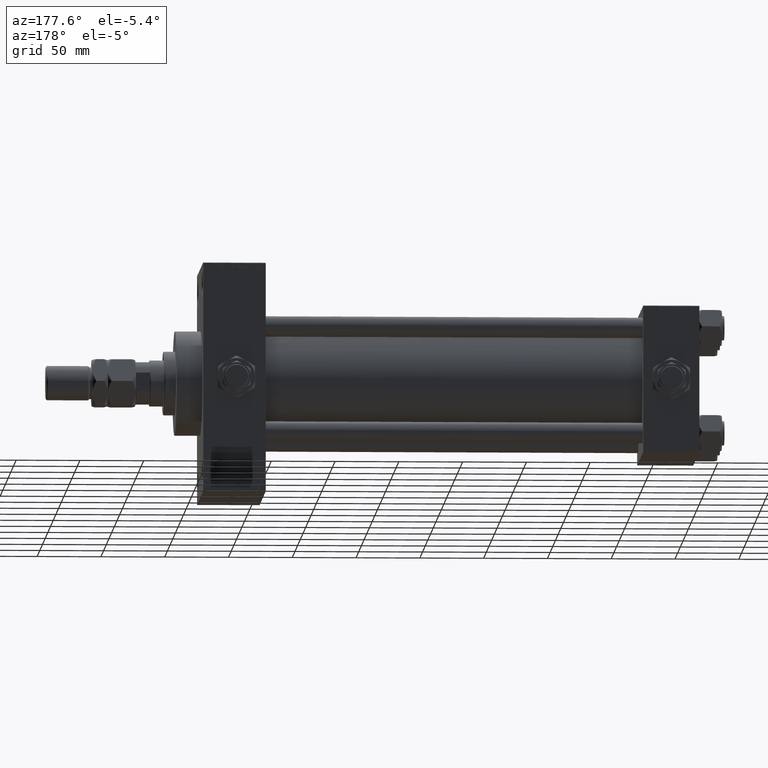
[diagram: clean part render]
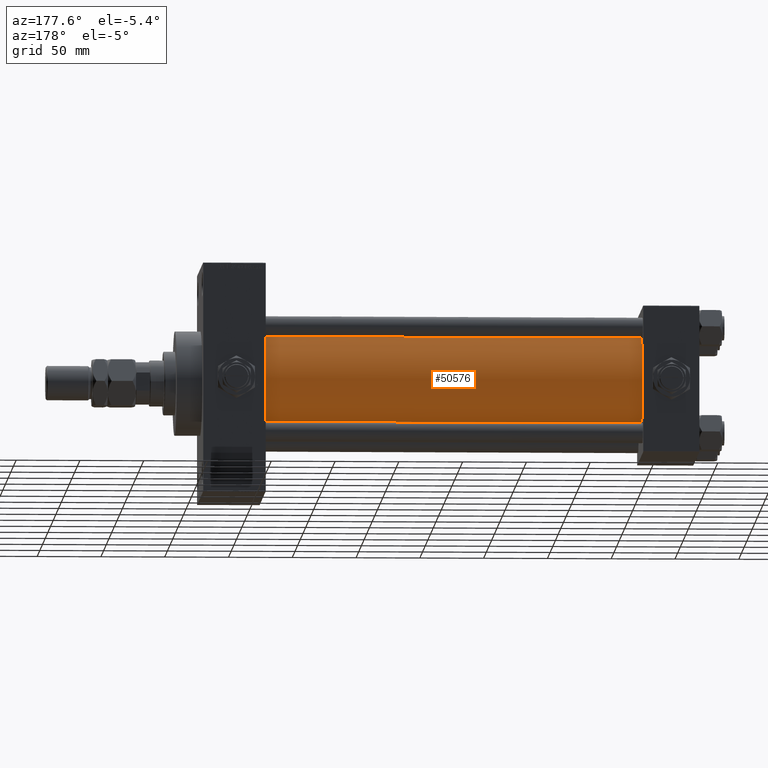
[diagram: same view with one face highlighted and labeled with its STEP entity id]
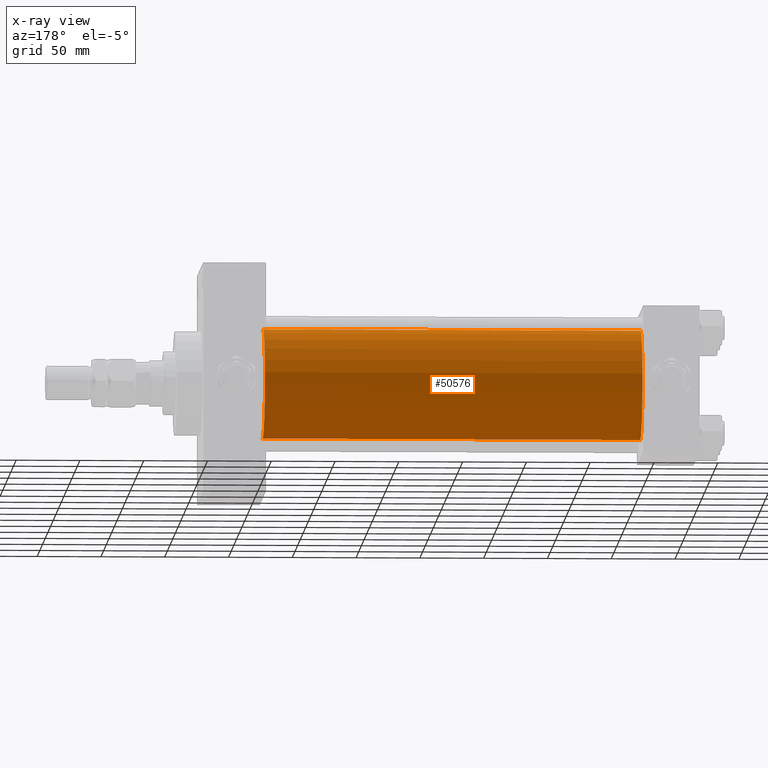
[diagram: x-ray of the same camera — body ghosted, the highlighted face saturated]
A machine part, auxiliary view. The second image highlights one B-rep face of the part: STEP entity #50576.
The next image is the same camera in x-ray: the body ghosted, the highlighted face saturated — about 0% of this face is hidden behind the body in this view.
In plain terms, the highlighted cylindrical surface (partial cylindrical patch) has radius 43 mm, axis along (-1, -0, -0).
Its self-contained STEP definition (entity closure, byte-faithful):
#4288 = CIRCLE ( 'NONE', #40816, 43.00000000000000000 ) ;
#4566 = VERTEX_POINT ( 'NONE', #17306 ) ;
#5474 = CARTESIAN_POINT ( 'NONE',  ( 339.9999999999999432, -2.602085213965210642E-15, 43.00000000000000000 ) ) ;
#8221 = EDGE_CURVE ( 'NONE', #40246, #46325, #4288, .T. ) ;
#9944 = CARTESIAN_POINT ( 'NONE',  ( 43.99999999999998579, -2.602085213965210642E-15, 0.000000000000000000 ) ) ;
#10497 = CIRCLE ( 'NONE', #31306, 43.00000000000000000 ) ;
#12472 = CARTESIAN_POINT ( 'NONE',  ( 43.99999999999998579, -2.602085213965210642E-15, 43.00000000000000000 ) ) ;
#17306 = CARTESIAN_POINT ( 'NONE',  ( 43.99999999999998579, 2.663896022368408223E-15, -43.00000000000000000 ) ) ;
#17488 = DIRECTION ( 'NONE',  ( 1.000000000000000000, -0.000000000000000000, 0.000000000000000000 ) ) ;
#17711 = EDGE_CURVE ( 'NONE', #46325, #29930, #50348, .T. ) ;
#22955 = ORIENTED_EDGE ( 'NONE', *, *, #23249, .T. ) ;
#23249 = EDGE_CURVE ( 'NONE', #4566, #29930, #10497, .T. ) ;
#23276 = CARTESIAN_POINT ( 'NONE',  ( 339.9999999999999432, 2.663896022368408223E-15, -43.00000000000000000 ) ) ;
#23361 = AXIS2_PLACEMENT_3D ( 'NONE', #32098, #47708, #39156 ) ;
#23458 = ORIENTED_EDGE ( 'NONE', *, *, #8221, .F. ) ;
#26694 = DIRECTION ( 'NONE',  ( -1.000000000000000000, -0.000000000000000000, -0.000000000000000000 ) ) ;
#26810 = ORIENTED_EDGE ( 'NONE', *, *, #43632, .T. ) ;
#27059 = VECTOR ( 'NONE', #26694, 1000.000000000000000 ) ;
#29930 = VERTEX_POINT ( 'NONE', #12472 ) ;
#30099 = ORIENTED_EDGE ( 'NONE', *, *, #17711, .F. ) ;
#30479 = EDGE_LOOP ( 'NONE', ( #23458, #26810, #22955, #30099 ) ) ;
#31306 = AXIS2_PLACEMENT_3D ( 'NONE', #9944, #17488, #49220 ) ;
#31716 = CARTESIAN_POINT ( 'NONE',  ( 339.9999999999999432, 2.663896022368408223E-15, -43.00000000000000000 ) ) ;
#31856 = FACE_OUTER_BOUND ( 'NONE', #30479, .T. ) ;
#32098 = CARTESIAN_POINT ( 'NONE',  ( 339.9999999999999432, -2.602085213965210642E-15, 0.000000000000000000 ) ) ;
#32363 = LINE ( 'NONE', #23276, #34058 ) ;
#34058 = VECTOR ( 'NONE', #44062, 1000.000000000000000 ) ;
#35509 = DIRECTION ( 'NONE',  ( 0.000000000000000000, 0.000000000000000000, -1.000000000000000000 ) ) ;
#39156 = DIRECTION ( 'NONE',  ( 0.000000000000000000, 0.000000000000000000, 1.000000000000000000 ) ) ;
#40246 = VERTEX_POINT ( 'NONE', #31716 ) ;
#40816 = AXIS2_PLACEMENT_3D ( 'NONE', #51095, #42785, #35509 ) ;
#42785 = DIRECTION ( 'NONE',  ( 1.000000000000000000, 0.000000000000000000, 0.000000000000000000 ) ) ;
#43632 = EDGE_CURVE ( 'NONE', #40246, #4566, #32363, .T. ) ;
#44062 = DIRECTION ( 'NONE',  ( -1.000000000000000000, -0.000000000000000000, -0.000000000000000000 ) ) ;
#46196 = CARTESIAN_POINT ( 'NONE',  ( 339.9999999999999432, -2.602085213965210642E-15, 43.00000000000000000 ) ) ;
#46325 = VERTEX_POINT ( 'NONE', #5474 ) ;
#47453 = CYLINDRICAL_SURFACE ( 'NONE', #23361, 43.00000000000000000 ) ;
#47708 = DIRECTION ( 'NONE',  ( -1.000000000000000000, -0.000000000000000000, -0.000000000000000000 ) ) ;
#49220 = DIRECTION ( 'NONE',  ( 0.000000000000000000, 0.000000000000000000, 1.000000000000000000 ) ) ;
#50348 = LINE ( 'NONE', #46196, #27059 ) ;
#50576 = ADVANCED_FACE ( 'NONE', ( #31856 ), #47453, .T. ) ;
#51095 = CARTESIAN_POINT ( 'NONE',  ( 339.9999999999999432, -2.602085213965210642E-15, 0.000000000000000000 ) ) ;